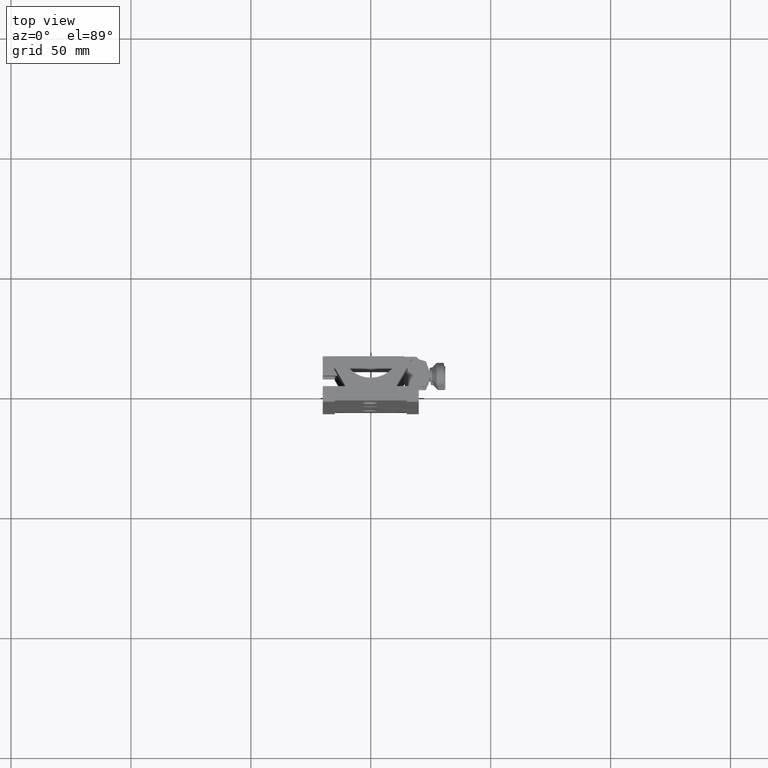
[diagram: clean part render]
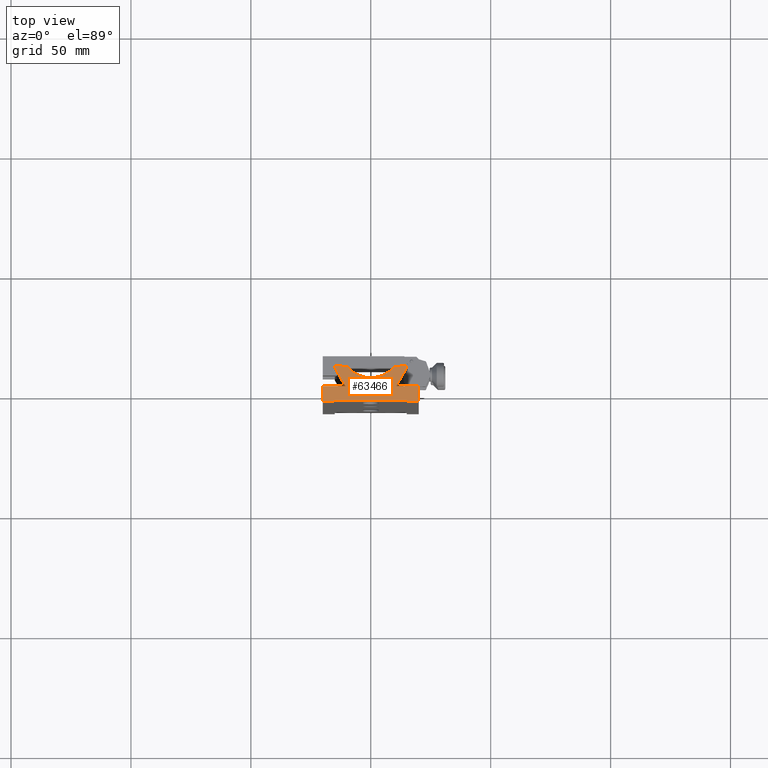
[diagram: same view with one face highlighted and labeled with its STEP entity id]
A machine part, top view. The second image highlights one B-rep face of the part: STEP entity #63466.
In plain terms, the highlighted planar face has unit normal (0, 0, 1).
Its self-contained STEP definition (entity closure, byte-faithful):
#493 = DIRECTION ( 'NONE',  ( -1.000000000000000000, 0.000000000000000000, 0.000000000000000000 ) ) ;
#796 = VERTEX_POINT ( 'NONE', #11372 ) ;
#1383 = CARTESIAN_POINT ( 'NONE',  ( -20.00000000000000000, -6.500000000000000000, 150.0000000000000000 ) ) ;
#1544 = CARTESIAN_POINT ( 'NONE',  ( -9.604686356149271020, 8.000000000000000000, 150.0000000000000000 ) ) ;
#2574 = ORIENTED_EDGE ( 'NONE', *, *, #57759, .T. ) ;
#2597 = CARTESIAN_POINT ( 'NONE',  ( 9.157674552523589243E-16, 8.000000000000000000, 150.0000000000000000 ) ) ;
#3077 = CARTESIAN_POINT ( 'NONE',  ( -15.00000000000000000, 16.00000000000000000, 150.0000000000000000 ) ) ;
#3122 = LINE ( 'NONE', #2597, #28170 ) ;
#3146 = CARTESIAN_POINT ( 'NONE',  ( 15.00000000000000000, 7.633974596215580277, 150.0000000000000000 ) ) ;
#3458 = DIRECTION ( 'NONE',  ( -1.000000000000000000, -1.445602896647339903E-16, 0.000000000000000000 ) ) ;
#3583 = CARTESIAN_POINT ( 'NONE',  ( -14.69999999999996376, 16.00000000000000000, 150.0000000000000000 ) ) ;
#3803 = VECTOR ( 'NONE', #107117, 1000.000000000000000 ) ;
#4842 = VECTOR ( 'NONE', #76996, 1000.000000000000000 ) ;
#5204 = CARTESIAN_POINT ( 'NONE',  ( -15.50000000000000000, 8.500000000000000000, 150.0000000000000000 ) ) ;
#5641 = VERTEX_POINT ( 'NONE', #35042 ) ;
#5692 = EDGE_CURVE ( 'NONE', #73461, #33741, #84838, .T. ) ;
#6728 = ORIENTED_EDGE ( 'NONE', *, *, #94079, .T. ) ;
#8239 = DIRECTION ( 'NONE',  ( 0.000000000000000000, 1.000000000000000000, 0.000000000000000000 ) ) ;
#9147 = LINE ( 'NONE', #34205, #94670 ) ;
#9416 = CARTESIAN_POINT ( 'NONE',  ( -20.00000000000000000, 0.000000000000000000, 150.0000000000000000 ) ) ;
#10722 = CARTESIAN_POINT ( 'NONE',  ( 10.00000000000000000, 8.500000000000000000, 150.0000000000000000 ) ) ;
#10823 = LINE ( 'NONE', #92018, #65584 ) ;
#10956 = DIRECTION ( 'NONE',  ( 1.000000000000000000, 0.000000000000000000, 0.000000000000000000 ) ) ;
#11028 = LINE ( 'NONE', #63320, #81769 ) ;
#11372 = CARTESIAN_POINT ( 'NONE',  ( -15.00000000000000000, -6.000000000000000000, 150.0000000000000000 ) ) ;
#12835 = CARTESIAN_POINT ( 'NONE',  ( -12.00000000000000000, 8.500000000000000000, 150.0000000000000000 ) ) ;
#13255 = VERTEX_POINT ( 'NONE', #12835 ) ;
#14677 = VERTEX_POINT ( 'NONE', #93272 ) ;
#14946 = DIRECTION ( 'NONE',  ( -2.101878407556359713E-16, 1.000000000000000000, 0.000000000000000000 ) ) ;
#17509 = EDGE_CURVE ( 'NONE', #66180, #5641, #40226, .T. ) ;
#18268 = VERTEX_POINT ( 'NONE', #37104 ) ;
#18395 = ORIENTED_EDGE ( 'NONE', *, *, #63753, .T. ) ;
#18891 = DIRECTION ( 'NONE',  ( -1.000000000000000000, -3.154042683594195121E-16, 0.000000000000000000 ) ) ;
#19099 = DIRECTION ( 'NONE',  ( 0.000000000000000000, 0.000000000000000000, -1.000000000000000000 ) ) ;
#20135 = VECTOR ( 'NONE', #56515, 1000.000000000000000 ) ;
#20757 = EDGE_CURVE ( 'NONE', #796, #78310, #44489, .T. ) ;
#21128 = VECTOR ( 'NONE', #78274, 1000.000000000000000 ) ;
#21362 = CARTESIAN_POINT ( 'NONE',  ( 10.59252271188811889, 2.594419806801890142E-15, 150.0000000000000000 ) ) ;
#21695 = CARTESIAN_POINT ( 'NONE',  ( -20.00000000000000000, -6.500000000000000000, 150.0000000000000000 ) ) ;
#23571 = LINE ( 'NONE', #105324, #104790 ) ;
#24292 = DIRECTION ( 'NONE',  ( 1.000000000000000000, 1.301042606982603842E-16, 0.000000000000000000 ) ) ;
#24381 = EDGE_CURVE ( 'NONE', #99859, #49862, #103707, .T. ) ;
#27837 = CARTESIAN_POINT ( 'NONE',  ( -2.407148620655124556E-16, 16.00000000000000000, 150.0000000000000000 ) ) ;
#28170 = VECTOR ( 'NONE', #76183, 1000.000000000000000 ) ;
#28275 = AXIS2_PLACEMENT_3D ( 'NONE', #43079, #19099, #28373 ) ;
#28373 = DIRECTION ( 'NONE',  ( 0.000000000000000000, -1.000000000000000000, 0.000000000000000000 ) ) ;
#28409 = CARTESIAN_POINT ( 'NONE',  ( 20.00000000000000000, 4.898587196589409870E-15, 150.0000000000000000 ) ) ;
#29601 = CARTESIAN_POINT ( 'NONE',  ( 9.157674552523589243E-16, 8.000000000000000000, 150.0000000000000000 ) ) ;
#29886 = VECTOR ( 'NONE', #94856, 1000.000000000000000 ) ;
#30774 = VECTOR ( 'NONE', #59197, 1000.000000000000000 ) ;
#31702 = VECTOR ( 'NONE', #18891, 1000.000000000000000 ) ;
#31748 = DIRECTION ( 'NONE',  ( 5.337610695313250398E-16, -1.000000000000000000, 0.000000000000000000 ) ) ;
#32327 = EDGE_CURVE ( 'NONE', #50165, #33741, #48179, .T. ) ;
#32645 = CARTESIAN_POINT ( 'NONE',  ( 15.00000000000000000, 8.500000000000000000, 150.0000000000000000 ) ) ;
#33343 = LINE ( 'NONE', #75318, #56865 ) ;
#33466 = ORIENTED_EDGE ( 'NONE', *, *, #69285, .F. ) ;
#33741 = VERTEX_POINT ( 'NONE', #93747 ) ;
#34205 = CARTESIAN_POINT ( 'NONE',  ( 20.00000000000000000, -6.500000000000000000, 150.0000000000000000 ) ) ;
#35042 = CARTESIAN_POINT ( 'NONE',  ( -10.59252271188811889, 0.000000000000000000, 150.0000000000000000 ) ) ;
#37104 = CARTESIAN_POINT ( 'NONE',  ( -14.69999999999996376, 8.500000000000000000, 150.0000000000000000 ) ) ;
#37355 = CARTESIAN_POINT ( 'NONE',  ( -15.00000000000000000, 7.633974596215569619, 150.0000000000000000 ) ) ;
#39144 = EDGE_CURVE ( 'NONE', #66180, #55323, #80524, .T. ) ;
#39544 = VECTOR ( 'NONE', #54923, 1000.000000000000000 ) ;
#40063 = VERTEX_POINT ( 'NONE', #75622 ) ;
#40226 = LINE ( 'NONE', #54966, #89659 ) ;
#40348 = VECTOR ( 'NONE', #14946, 1000.000000000000000 ) ;
#40706 = LINE ( 'NONE', #3583, #30774 ) ;
#41034 = CARTESIAN_POINT ( 'NONE',  ( 12.00000000000000000, 8.000000000000000000, 150.0000000000000000 ) ) ;
#41706 = CARTESIAN_POINT ( 'NONE',  ( -12.00000000000000000, 16.00000000000000000, 150.0000000000000000 ) ) ;
#43079 = CARTESIAN_POINT ( 'NONE',  ( -2.407148620655124556E-16, 16.00000000000000000, 150.0000000000000000 ) ) ;
#44489 = LINE ( 'NONE', #3077, #21128 ) ;
#44728 = LINE ( 'NONE', #28409, #29886 ) ;
#48017 = ORIENTED_EDGE ( 'NONE', *, *, #101753, .T. ) ;
#48179 = LINE ( 'NONE', #107029, #40348 ) ;
#49531 = EDGE_CURVE ( 'NONE', #63821, #61541, #9147, .T. ) ;
#49862 = VERTEX_POINT ( 'NONE', #50973 ) ;
#50165 = VERTEX_POINT ( 'NONE', #41034 ) ;
#50822 = EDGE_CURVE ( 'NONE', #96832, #78310, #50992, .T. ) ;
#50973 = CARTESIAN_POINT ( 'NONE',  ( -12.00000000000000000, 8.000000000000000000, 150.0000000000000000 ) ) ;
#50992 = LINE ( 'NONE', #1383, #71271 ) ;
#51507 = VERTEX_POINT ( 'NONE', #73113 ) ;
#51676 = LINE ( 'NONE', #76766, #51969 ) ;
#51969 = VECTOR ( 'NONE', #94700, 1000.000000000000000 ) ;
#54923 = DIRECTION ( 'NONE',  ( 1.000000000000000000, 1.301042606982603842E-16, 0.000000000000000000 ) ) ;
#54966 = CARTESIAN_POINT ( 'NONE',  ( -10.59252271188811889, 0.000000000000000000, 150.0000000000000000 ) ) ;
#55323 = VERTEX_POINT ( 'NONE', #72298 ) ;
#56327 = VERTEX_POINT ( 'NONE', #85666 ) ;
#56515 = DIRECTION ( 'NONE',  ( -1.717114570520704725E-16, 1.000000000000000000, 0.000000000000000000 ) ) ;
#56865 = VECTOR ( 'NONE', #31748, 1000.000000000000000 ) ;
#57650 = DIRECTION ( 'NONE',  ( -5.337610695313250398E-16, 1.000000000000000000, 0.000000000000000000 ) ) ;
#57759 = EDGE_CURVE ( 'NONE', #50165, #51507, #3122, .T. ) ;
#57852 = LINE ( 'NONE', #73138, #61873 ) ;
#57957 = EDGE_CURVE ( 'NONE', #13255, #49862, #107640, .T. ) ;
#59078 = ORIENTED_EDGE ( 'NONE', *, *, #96342, .T. ) ;
#59187 = ORIENTED_EDGE ( 'NONE', *, *, #82324, .F. ) ;
#59197 = DIRECTION ( 'NONE',  ( 0.000000000000000000, -1.000000000000000000, 0.000000000000000000 ) ) ;
#59290 = EDGE_CURVE ( 'NONE', #14677, #106778, #51676, .T. ) ;
#59483 = DIRECTION ( 'NONE',  ( 0.000000000000000000, 0.000000000000000000, 1.000000000000000000 ) ) ;
#60225 = ORIENTED_EDGE ( 'NONE', *, *, #49531, .T. ) ;
#61169 = DIRECTION ( 'NONE',  ( 1.000000000000000000, 0.000000000000000000, 0.000000000000000000 ) ) ;
#61541 = VERTEX_POINT ( 'NONE', #68034 ) ;
#61832 = ORIENTED_EDGE ( 'NONE', *, *, #79870, .T. ) ;
#61873 = VECTOR ( 'NONE', #8239, 1000.000000000000000 ) ;
#62540 = ORIENTED_EDGE ( 'NONE', *, *, #59290, .T. ) ;
#62954 = VERTEX_POINT ( 'NONE', #97781 ) ;
#63320 = CARTESIAN_POINT ( 'NONE',  ( -2.407148620655124556E-16, -6.000000000000000000, 150.0000000000000000 ) ) ;
#63466 = ADVANCED_FACE ( 'NONE', ( #69266 ), #69809, .T. ) ;
#63753 = EDGE_CURVE ( 'NONE', #18268, #55323, #10823, .T. ) ;
#63821 = VERTEX_POINT ( 'NONE', #68614 ) ;
#64007 = VERTEX_POINT ( 'NONE', #105038 ) ;
#64357 = EDGE_CURVE ( 'NONE', #64007, #96832, #33343, .T. ) ;
#64432 = VECTOR ( 'NONE', #95165, 1000.000000000000114 ) ;
#65584 = VECTOR ( 'NONE', #493, 1000.000000000000000 ) ;
#66180 = VERTEX_POINT ( 'NONE', #37355 ) ;
#66776 = VECTOR ( 'NONE', #3458, 1000.000000000000000 ) ;
#67113 = ORIENTED_EDGE ( 'NONE', *, *, #96779, .T. ) ;
#68034 = CARTESIAN_POINT ( 'NONE',  ( 20.00000000000000000, 4.898587196589409870E-15, 150.0000000000000000 ) ) ;
#68614 = CARTESIAN_POINT ( 'NONE',  ( 20.00000000000000000, -6.500000000000000000, 150.0000000000000000 ) ) ;
#69266 = FACE_OUTER_BOUND ( 'NONE', #107124, .T. ) ;
#69285 = EDGE_CURVE ( 'NONE', #40063, #56327, #57852, .T. ) ;
#69548 = DIRECTION ( 'NONE',  ( -1.000000000000000000, 0.000000000000000000, 0.000000000000000000 ) ) ;
#69809 = PLANE ( 'NONE',  #79441 ) ;
#71271 = VECTOR ( 'NONE', #24292, 1000.000000000000000 ) ;
#72298 = CARTESIAN_POINT ( 'NONE',  ( -15.00000000000000000, 8.500000000000000000, 150.0000000000000000 ) ) ;
#73113 = CARTESIAN_POINT ( 'NONE',  ( 9.604686356149281679, 8.000000000000000000, 150.0000000000000000 ) ) ;
#73138 = CARTESIAN_POINT ( 'NONE',  ( 15.00000000000000000, 16.00000000000000000, 150.0000000000000000 ) ) ;
#73381 = VECTOR ( 'NONE', #69548, 1000.000000000000000 ) ;
#73461 = VERTEX_POINT ( 'NONE', #32645 ) ;
#74727 = ORIENTED_EDGE ( 'NONE', *, *, #57957, .F. ) ;
#75188 = EDGE_CURVE ( 'NONE', #73461, #106412, #104661, .T. ) ;
#75250 = CIRCLE ( 'NONE', #28275, 12.50000000000000000 ) ;
#75318 = CARTESIAN_POINT ( 'NONE',  ( -20.00000000000000000, -6.500000000000000000, 150.0000000000000000 ) ) ;
#75622 = CARTESIAN_POINT ( 'NONE',  ( 15.00000000000000000, -6.500000000000000000, 150.0000000000000000 ) ) ;
#76183 = DIRECTION ( 'NONE',  ( -1.000000000000000000, -1.445602896647339903E-16, 0.000000000000000000 ) ) ;
#76766 = CARTESIAN_POINT ( 'NONE',  ( -2.407148620655124556E-16, 8.400000000000000355, 150.0000000000000000 ) ) ;
#76996 = DIRECTION ( 'NONE',  ( -1.000000000000000000, 0.000000000000000000, 0.000000000000000000 ) ) ;
#78274 = DIRECTION ( 'NONE',  ( 0.000000000000000000, -1.000000000000000000, 0.000000000000000000 ) ) ;
#78310 = VERTEX_POINT ( 'NONE', #99136 ) ;
#78842 = LINE ( 'NONE', #102810, #64432 ) ;
#79178 = ORIENTED_EDGE ( 'NONE', *, *, #24381, .T. ) ;
#79441 = AXIS2_PLACEMENT_3D ( 'NONE', #27837, #59483, #10956 ) ;
#79870 = EDGE_CURVE ( 'NONE', #104803, #106412, #78842, .T. ) ;
#80524 = LINE ( 'NONE', #106093, #20135 ) ;
#80539 = LINE ( 'NONE', #21695, #39544 ) ;
#80814 = CARTESIAN_POINT ( 'NONE',  ( -20.00000000000000000, -6.500000000000000000, 150.0000000000000000 ) ) ;
#80920 = ORIENTED_EDGE ( 'NONE', *, *, #100717, .T. ) ;
#81512 = ORIENTED_EDGE ( 'NONE', *, *, #39144, .F. ) ;
#81769 = VECTOR ( 'NONE', #61169, 1000.000000000000000 ) ;
#82324 = EDGE_CURVE ( 'NONE', #18268, #106778, #40706, .T. ) ;
#82680 = ORIENTED_EDGE ( 'NONE', *, *, #64357, .T. ) ;
#84838 = LINE ( 'NONE', #10722, #31702 ) ;
#84842 = ORIENTED_EDGE ( 'NONE', *, *, #5692, .T. ) ;
#85666 = CARTESIAN_POINT ( 'NONE',  ( 15.00000000000000000, -6.000000000000000000, 150.0000000000000000 ) ) ;
#87797 = ORIENTED_EDGE ( 'NONE', *, *, #50822, .T. ) ;
#88816 = ORIENTED_EDGE ( 'NONE', *, *, #32327, .F. ) ;
#88959 = ORIENTED_EDGE ( 'NONE', *, *, #75188, .F. ) ;
#89659 = VECTOR ( 'NONE', #96374, 1000.000000000000114 ) ;
#90307 = VECTOR ( 'NONE', #97542, 1000.000000000000000 ) ;
#90693 = EDGE_CURVE ( 'NONE', #796, #56327, #11028, .T. ) ;
#91539 = ORIENTED_EDGE ( 'NONE', *, *, #90693, .T. ) ;
#92018 = CARTESIAN_POINT ( 'NONE',  ( -15.50000000000000000, 8.500000000000000000, 150.0000000000000000 ) ) ;
#92977 = ORIENTED_EDGE ( 'NONE', *, *, #96132, .T. ) ;
#93272 = CARTESIAN_POINT ( 'NONE',  ( -13.29999999999996518, 8.400000000000000355, 150.0000000000000000 ) ) ;
#93473 = CARTESIAN_POINT ( 'NONE',  ( -14.69999999999996376, 8.400000000000000355, 150.0000000000000000 ) ) ;
#93747 = CARTESIAN_POINT ( 'NONE',  ( 12.00000000000000000, 8.500000000000000000, 150.0000000000000000 ) ) ;
#94079 = EDGE_CURVE ( 'NONE', #51507, #99859, #75250, .T. ) ;
#94670 = VECTOR ( 'NONE', #57650, 1000.000000000000000 ) ;
#94700 = DIRECTION ( 'NONE',  ( -1.000000000000000000, 0.000000000000000000, 0.000000000000000000 ) ) ;
#94856 = DIRECTION ( 'NONE',  ( -1.000000000000000000, -2.449293598294704935E-16, 0.000000000000000000 ) ) ;
#95165 = DIRECTION ( 'NONE',  ( 0.5000000000000011102, 0.8660254037844379305, 0.000000000000000000 ) ) ;
#95282 = ORIENTED_EDGE ( 'NONE', *, *, #20757, .F. ) ;
#96132 = EDGE_CURVE ( 'NONE', #61541, #104803, #44728, .T. ) ;
#96342 = EDGE_CURVE ( 'NONE', #13255, #62954, #104370, .T. ) ;
#96374 = DIRECTION ( 'NONE',  ( 0.5000000000000011102, -0.8660254037844379305, 0.000000000000000000 ) ) ;
#96779 = EDGE_CURVE ( 'NONE', #62954, #14677, #23571, .T. ) ;
#96832 = VERTEX_POINT ( 'NONE', #80814 ) ;
#97542 = DIRECTION ( 'NONE',  ( -1.717114570520704725E-16, -1.000000000000000000, 0.000000000000000000 ) ) ;
#97781 = CARTESIAN_POINT ( 'NONE',  ( -13.29999999999996518, 8.500000000000000000, 150.0000000000000000 ) ) ;
#99136 = CARTESIAN_POINT ( 'NONE',  ( -15.00000000000000000, -6.500000000000000000, 150.0000000000000000 ) ) ;
#99326 = LINE ( 'NONE', #9416, #4842 ) ;
#99558 = CARTESIAN_POINT ( 'NONE',  ( 15.00000000000000000, 14.43276648600719980, 150.0000000000000000 ) ) ;
#99859 = VERTEX_POINT ( 'NONE', #1544 ) ;
#100717 = EDGE_CURVE ( 'NONE', #40063, #63821, #80539, .T. ) ;
#101753 = EDGE_CURVE ( 'NONE', #5641, #64007, #99326, .T. ) ;
#102279 = ORIENTED_EDGE ( 'NONE', *, *, #17509, .T. ) ;
#102810 = CARTESIAN_POINT ( 'NONE',  ( 10.59252271188811889, 2.594419806801890142E-15, 150.0000000000000000 ) ) ;
#103707 = LINE ( 'NONE', #29601, #66776 ) ;
#104370 = LINE ( 'NONE', #5204, #73381 ) ;
#104661 = LINE ( 'NONE', #99558, #90307 ) ;
#104790 = VECTOR ( 'NONE', #106930, 1000.000000000000000 ) ;
#104803 = VERTEX_POINT ( 'NONE', #21362 ) ;
#105038 = CARTESIAN_POINT ( 'NONE',  ( -20.00000000000000000, 0.000000000000000000, 150.0000000000000000 ) ) ;
#105324 = CARTESIAN_POINT ( 'NONE',  ( -13.29999999999996518, 16.00000000000000000, 150.0000000000000000 ) ) ;
#106093 = CARTESIAN_POINT ( 'NONE',  ( -15.00000000000000000, 14.43276648600719980, 150.0000000000000000 ) ) ;
#106412 = VERTEX_POINT ( 'NONE', #3146 ) ;
#106778 = VERTEX_POINT ( 'NONE', #93473 ) ;
#106930 = DIRECTION ( 'NONE',  ( 0.000000000000000000, -1.000000000000000000, 0.000000000000000000 ) ) ;
#107029 = CARTESIAN_POINT ( 'NONE',  ( 12.00000000000000000, 16.00000000000000000, 150.0000000000000000 ) ) ;
#107117 = DIRECTION ( 'NONE',  ( 2.101878407556359713E-16, -1.000000000000000000, 0.000000000000000000 ) ) ;
#107124 = EDGE_LOOP ( 'NONE', ( #59187, #18395, #81512, #102279, #48017, #82680, #87797, #95282, #91539, #33466, #80920, #60225, #92977, #61832, #88959, #84842, #88816, #2574, #6728, #79178, #74727, #59078, #67113, #62540 ) ) ;
#107640 = LINE ( 'NONE', #41706, #3803 ) ;